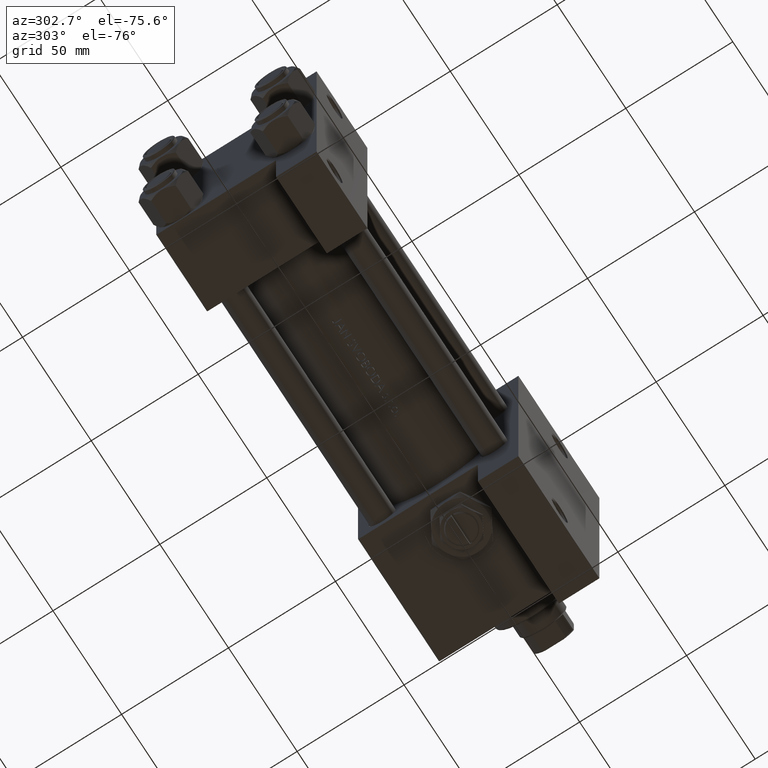
[diagram: clean part render]
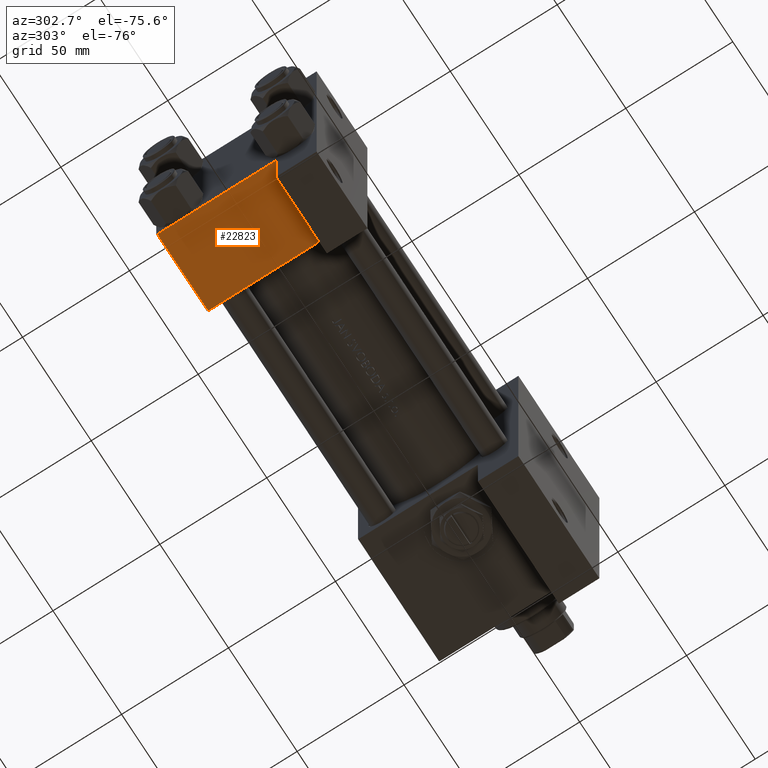
[diagram: same view with one face highlighted and labeled with its STEP entity id]
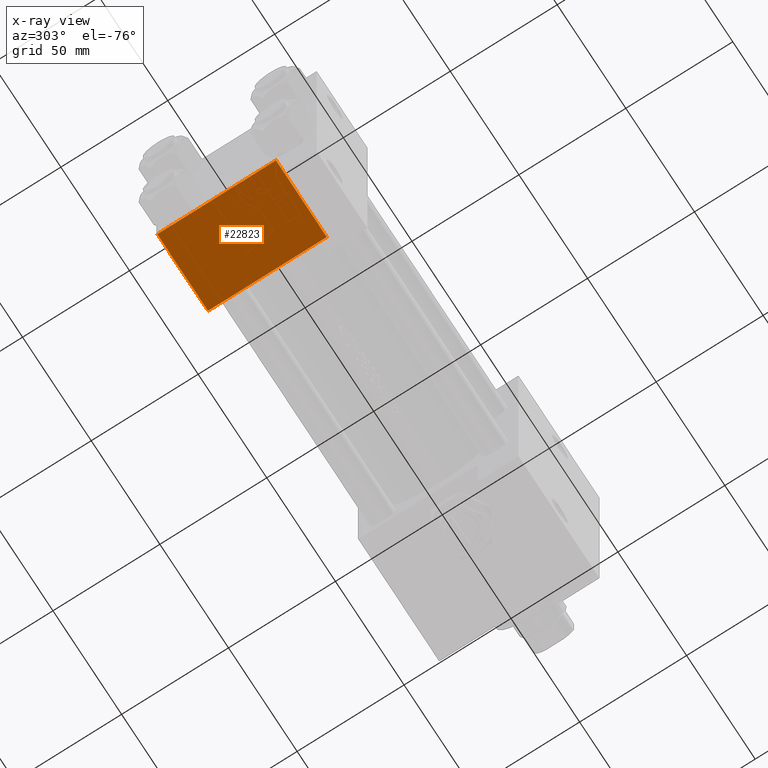
[diagram: x-ray of the same camera — body ghosted, the highlighted face saturated]
A machine part, auxiliary view. The second image highlights one B-rep face of the part: STEP entity #22823.
The next image is the same camera in x-ray: the body ghosted, the highlighted face saturated — about 0% of this face is hidden behind the body in this view.
In plain terms, the highlighted planar face has unit normal (0, 0, -1).
Its self-contained STEP definition (entity closure, byte-faithful):
#1730 = EDGE_CURVE ( 'NONE', #19757, #32720, #35447, .T. ) ;
#4072 = LINE ( 'NONE', #49136, #40892 ) ;
#4662 = CARTESIAN_POINT ( 'NONE',  ( 37.00000000000000000, 37.49999999999999289, 37.50000000000000000 ) ) ;
#7589 = CARTESIAN_POINT ( 'NONE',  ( 0.000000000000000000, 37.49999999999999289, -18.49999999999999645 ) ) ;
#7650 = DIRECTION ( 'NONE',  ( 0.000000000000000000, -0.000000000000000000, 1.000000000000000000 ) ) ;
#7770 = VECTOR ( 'NONE', #46380, 1000.000000000000000 ) ;
#8036 = LINE ( 'NONE', #19248, #12099 ) ;
#8779 = CARTESIAN_POINT ( 'NONE',  ( 37.00000000000000000, 37.49999999999999289, 37.50000000000000000 ) ) ;
#10727 = VECTOR ( 'NONE', #20253, 1000.000000000000000 ) ;
#11162 = CARTESIAN_POINT ( 'NONE',  ( 37.00000000000000711, 37.50000000000000711, -18.50000000000000355 ) ) ;
#11856 = AXIS2_PLACEMENT_3D ( 'NONE', #4662, #15867, #7650 ) ;
#12099 = VECTOR ( 'NONE', #34438, 1000.000000000000000 ) ;
#14075 = EDGE_LOOP ( 'NONE', ( #44471, #14316, #18398, #34571 ) ) ;
#14316 = ORIENTED_EDGE ( 'NONE', *, *, #19574, .F. ) ;
#15867 = DIRECTION ( 'NONE',  ( -0.000000000000000000, 1.000000000000000000, 0.000000000000000000 ) ) ;
#18398 = ORIENTED_EDGE ( 'NONE', *, *, #43952, .T. ) ;
#19001 = CARTESIAN_POINT ( 'NONE',  ( 0.000000000000000000, 37.49999999999999289, 37.50000000000000000 ) ) ;
#19224 = VERTEX_POINT ( 'NONE', #7589 ) ;
#19248 = CARTESIAN_POINT ( 'NONE',  ( 37.00000000000000000, 37.49999999999999289, 37.00000000000000000 ) ) ;
#19574 = EDGE_CURVE ( 'NONE', #24386, #19224, #38183, .T. ) ;
#19757 = VERTEX_POINT ( 'NONE', #25693 ) ;
#20253 = DIRECTION ( 'NONE',  ( 0.000000000000000000, 0.000000000000000000, -1.000000000000000000 ) ) ;
#22507 = DIRECTION ( 'NONE',  ( 1.000000000000000000, -3.750753461571474945E-16, 0.000000000000000000 ) ) ;
#22823 = ADVANCED_FACE ( 'NONE', ( #42523 ), #27091, .T. ) ;
#24386 = VERTEX_POINT ( 'NONE', #43252 ) ;
#25693 = CARTESIAN_POINT ( 'NONE',  ( 37.00000000000000000, 37.49999999999999289, 37.00000000000000000 ) ) ;
#27091 = PLANE ( 'NONE',  #11856 ) ;
#32720 = VERTEX_POINT ( 'NONE', #11162 ) ;
#34438 = DIRECTION ( 'NONE',  ( 1.000000000000000000, 0.000000000000000000, 0.000000000000000000 ) ) ;
#34571 = ORIENTED_EDGE ( 'NONE', *, *, #1730, .T. ) ;
#35447 = LINE ( 'NONE', #8779, #10727 ) ;
#38183 = LINE ( 'NONE', #19001, #7770 ) ;
#40892 = VECTOR ( 'NONE', #22507, 1000.000000000000000 ) ;
#42523 = FACE_OUTER_BOUND ( 'NONE', #14075, .T. ) ;
#43252 = CARTESIAN_POINT ( 'NONE',  ( 0.000000000000000000, 37.49999999999999289, 37.00000000000000000 ) ) ;
#43952 = EDGE_CURVE ( 'NONE', #24386, #19757, #8036, .T. ) ;
#44471 = ORIENTED_EDGE ( 'NONE', *, *, #48819, .F. ) ;
#46380 = DIRECTION ( 'NONE',  ( 0.000000000000000000, 0.000000000000000000, -1.000000000000000000 ) ) ;
#48819 = EDGE_CURVE ( 'NONE', #19224, #32720, #4072, .T. ) ;
#49136 = CARTESIAN_POINT ( 'NONE',  ( 8.470280871287256020E-15, 37.50000000000002842, -18.49999999999999645 ) ) ;